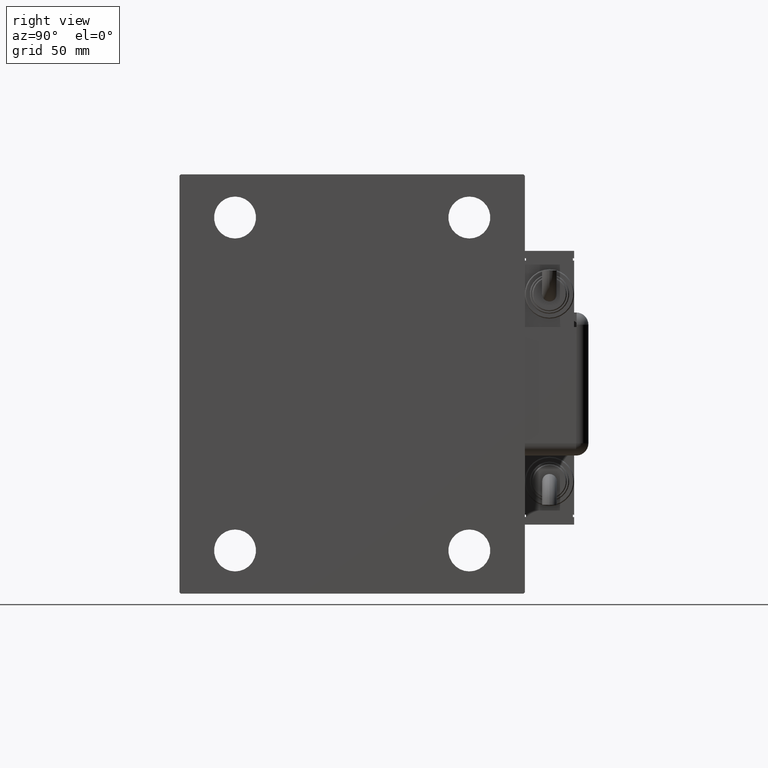
[diagram: clean part render]
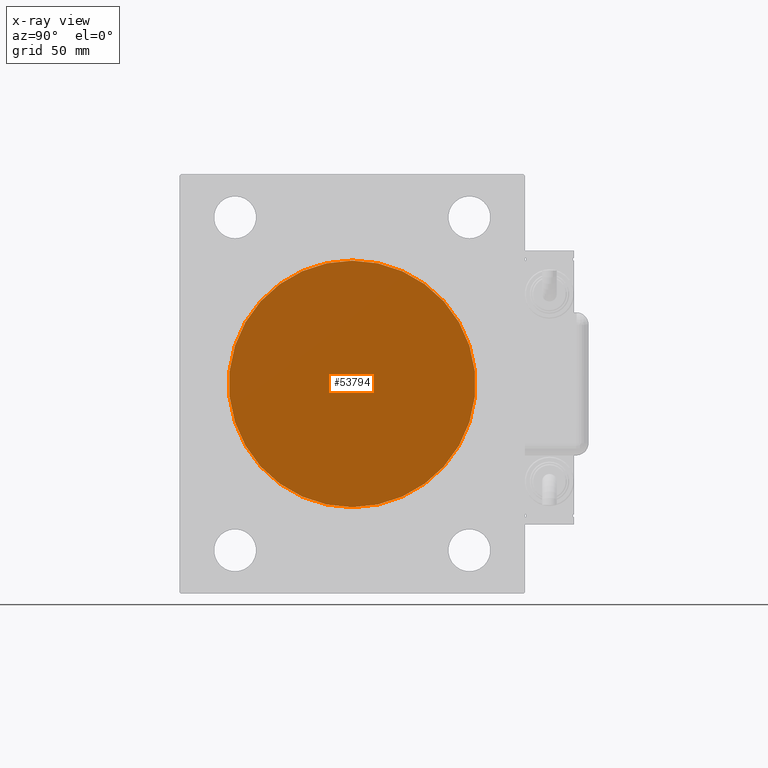
[diagram: x-ray — body ghosted, one internal face saturated and labeled with its STEP entity id]
A machine part, right view, then the same camera in x-ray: the body is ghosted and one INTERNAL B-rep face — a face not visible from any outside direction — is saturated and labeled: STEP entity #53794.
In plain terms, the highlighted planar face has unit normal (-1, 0, 0).
Its self-contained STEP definition (entity closure, byte-faithful):
#740 = DIRECTION ( 'NONE',  ( -1.000000000000000000, 0.000000000000000000, 0.000000000000000000 ) ) ;
#3204 = VERTEX_POINT ( 'NONE', #21932 ) ;
#4403 = ORIENTED_EDGE ( 'NONE', *, *, #5076, .T. ) ;
#5076 = EDGE_CURVE ( 'NONE', #3204, #41169, #56334, .T. ) ;
#6931 = CARTESIAN_POINT ( 'NONE',  ( 51.00000000000000000, 0.000000000000000000, 0.000000000000000000 ) ) ;
#7235 = DIRECTION ( 'NONE',  ( 0.000000000000000000, 0.000000000000000000, 1.000000000000000000 ) ) ;
#18068 = FACE_OUTER_BOUND ( 'NONE', #27522, .T. ) ;
#18663 = CARTESIAN_POINT ( 'NONE',  ( 51.00000000000000000, 0.000000000000000000, 0.000000000000000000 ) ) ;
#21932 = CARTESIAN_POINT ( 'NONE',  ( 51.00000000000000000, 0.000000000000000000, 50.00000000000000000 ) ) ;
#23499 = DIRECTION ( 'NONE',  ( 0.000000000000000000, 0.000000000000000000, 1.000000000000000000 ) ) ;
#25976 = DIRECTION ( 'NONE',  ( -1.000000000000000000, 0.000000000000000000, 0.000000000000000000 ) ) ;
#26167 = EDGE_CURVE ( 'NONE', #41169, #3204, #29638, .T. ) ;
#27135 = DIRECTION ( 'NONE',  ( -1.000000000000000000, 0.000000000000000000, 0.000000000000000000 ) ) ;
#27522 = EDGE_LOOP ( 'NONE', ( #4403, #38499 ) ) ;
#29638 = CIRCLE ( 'NONE', #37350, 50.00000000000000000 ) ;
#30237 = AXIS2_PLACEMENT_3D ( 'NONE', #6931, #25976, #7235 ) ;
#31367 = PLANE ( 'NONE',  #58259 ) ;
#37020 = CARTESIAN_POINT ( 'NONE',  ( 51.00000000000000000, 0.000000000000000000, 0.000000000000000000 ) ) ;
#37350 = AXIS2_PLACEMENT_3D ( 'NONE', #37020, #740, #59706 ) ;
#38499 = ORIENTED_EDGE ( 'NONE', *, *, #26167, .T. ) ;
#41169 = VERTEX_POINT ( 'NONE', #44434 ) ;
#44434 = CARTESIAN_POINT ( 'NONE',  ( 51.00000000000000000, 6.123233995736766085E-15, -50.00000000000000000 ) ) ;
#53794 = ADVANCED_FACE ( 'NONE', ( #18068 ), #31367, .T. ) ;
#56334 = CIRCLE ( 'NONE', #30237, 50.00000000000000000 ) ;
#58259 = AXIS2_PLACEMENT_3D ( 'NONE', #18663, #27135, #23499 ) ;
#59706 = DIRECTION ( 'NONE',  ( 0.000000000000000000, 0.000000000000000000, 1.000000000000000000 ) ) ;